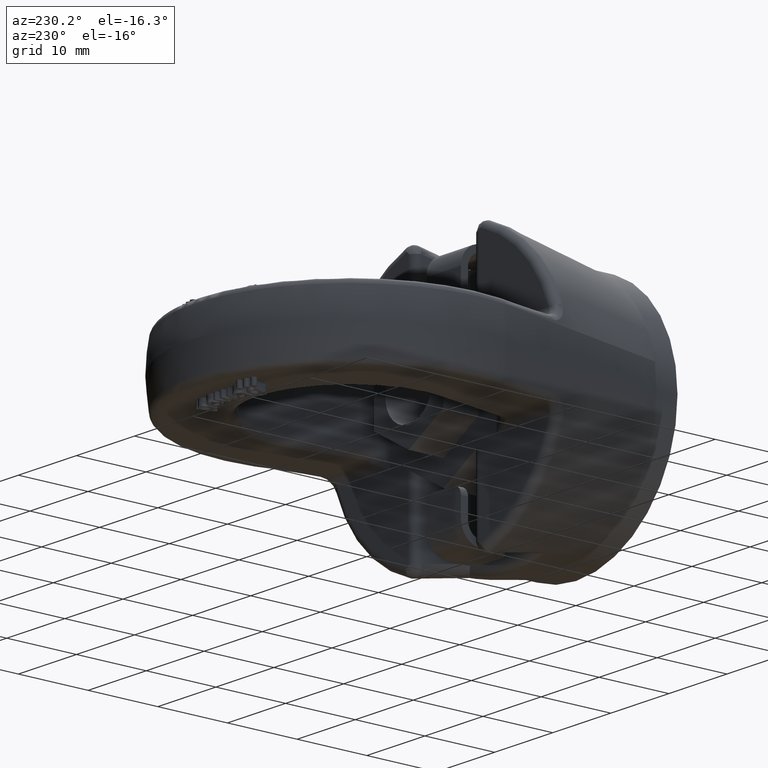
[diagram: clean part render]
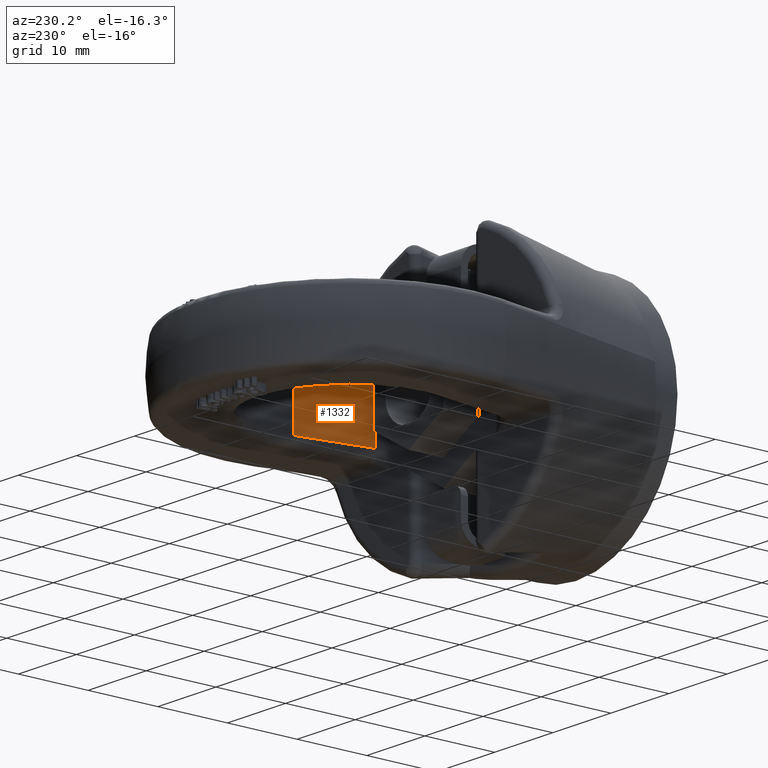
[diagram: same view with one face highlighted and labeled with its STEP entity id]
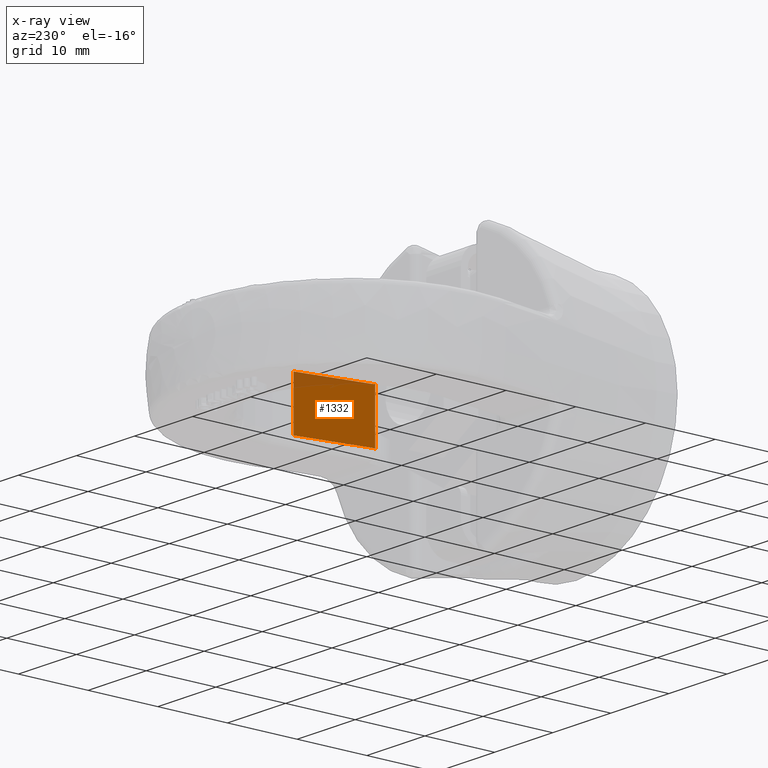
[diagram: x-ray of the same camera — body ghosted, the highlighted face saturated]
A machine part, auxiliary view. The second image highlights one B-rep face of the part: STEP entity #1332.
The next image is the same camera in x-ray: the body ghosted, the highlighted face saturated — about 12% of this face is hidden behind the body in this view.
In plain terms, the highlighted planar face has unit normal (-0.9838, 0.1791, 0).
Its self-contained STEP definition (entity closure, byte-faithful):
#1050=ELLIPSE('',#5135,2.7104836226665,2.66666666666667);
#1051=ELLIPSE('',#5136,2.7104836226665,2.66666666666667);
#1111=FACE_OUTER_BOUND('',#1847,.T.);
#1332=ADVANCED_FACE('',(#1111),#1569,.T.);
#1569=PLANE('',#5137);
#1847=EDGE_LOOP('',(#2831,#2832,#2833,#2834,#2835,#2836));
#2139=LINE('',#6729,#2409);
#2164=LINE('',#6877,#2434);
#2165=LINE('',#6882,#2435);
#2166=LINE('',#6883,#2436);
#2409=VECTOR('',#5458,1.);
#2434=VECTOR('',#5505,1.);
#2435=VECTOR('',#5508,1.);
#2436=VECTOR('',#5509,1.);
#2831=ORIENTED_EDGE('',*,*,#4382,.T.);
#2832=ORIENTED_EDGE('',*,*,#4383,.T.);
#2833=ORIENTED_EDGE('',*,*,#4384,.T.);
#2834=ORIENTED_EDGE('',*,*,#4345,.F.);
#2835=ORIENTED_EDGE('',*,*,#4385,.T.);
#2836=ORIENTED_EDGE('',*,*,#4386,.T.);
#3957=VERTEX_POINT('',#6730);
#3958=VERTEX_POINT('',#6731);
#3993=VERTEX_POINT('',#6878);
#3994=VERTEX_POINT('',#6879);
#3995=VERTEX_POINT('',#6881);
#3996=VERTEX_POINT('',#6884);
#4345=EDGE_CURVE('',#3957,#3958,#2139,.T.);
#4382=EDGE_CURVE('',#3993,#3994,#2164,.T.);
#4383=EDGE_CURVE('',#3994,#3995,#1050,.T.);
#4384=EDGE_CURVE('',#3995,#3958,#2165,.T.);
#4385=EDGE_CURVE('',#3957,#3996,#2166,.T.);
#4386=EDGE_CURVE('',#3996,#3993,#1051,.T.);
#5135=AXIS2_PLACEMENT_3D('',#6880,#5506,#5507);
#5136=AXIS2_PLACEMENT_3D('',#6885,#5510,#5511);
#5137=AXIS2_PLACEMENT_3D('',#6886,#5512,#5513);
#5458=DIRECTION('',(0.,0.,1.));
#5505=DIRECTION('',(0.,0.,1.));
#5506=DIRECTION('',(0.983834266463219,-0.179081367352328,0.));
#5507=DIRECTION('',(-0.179081367352328,-0.983834266463219,0.));
#5508=DIRECTION('',(0.179081367352328,0.983834266463219,-1.29856117277491E-16));
#5509=DIRECTION('',(-0.179081367352328,-0.983834266463219,-5.49427774240808E-16));
#5510=DIRECTION('',(0.983834266463219,-0.179081367352328,2.3050358586169E-15));
#5511=DIRECTION('',(0.179081367352328,0.983834266463219,4.19571656963317E-16));
#5512=DIRECTION('',(-0.983834266463219,0.179081367352328,0.));
#5513=DIRECTION('',(-0.179081367352328,-0.983834266463219,0.));
#6729=CARTESIAN_POINT('',(12.2979283307902,30.2614829080959,24.75));
#6730=CARTESIAN_POINT('',(12.2979283307903,30.2614829080959,-3.66666666666665));
#6731=CARTESIAN_POINT('',(12.2979283307902,30.2614829080959,3.66666666666668));
#6877=CARTESIAN_POINT('',(10.4473048622842,20.0945581768636,5.00000000000001));
#6878=CARTESIAN_POINT('',(10.4473048622842,20.0945581768636,-3.7097752894314));
#6879=CARTESIAN_POINT('',(10.4473048622842,20.0945581768636,3.70977528943142));
#6880=CARTESIAN_POINT('',(10.5342304410488,20.5721084898031,6.33333333333334));
#6881=CARTESIAN_POINT('',(10.5342304410488,20.5721084898031,3.66666666666667));
#6882=CARTESIAN_POINT('',(12.2979283307902,30.2614829080959,3.66666666666667));
#6883=CARTESIAN_POINT('',(10.4907676516665,20.3333333333333,-3.66666666666665));
#6884=CARTESIAN_POINT('',(10.5342304410488,20.5721084898031,-3.66666666666665));
#6885=CARTESIAN_POINT('',(10.5342304410488,20.5721084898031,-6.33333333333332));
#6886=CARTESIAN_POINT('',(10.2480690949999,19.,24.75));